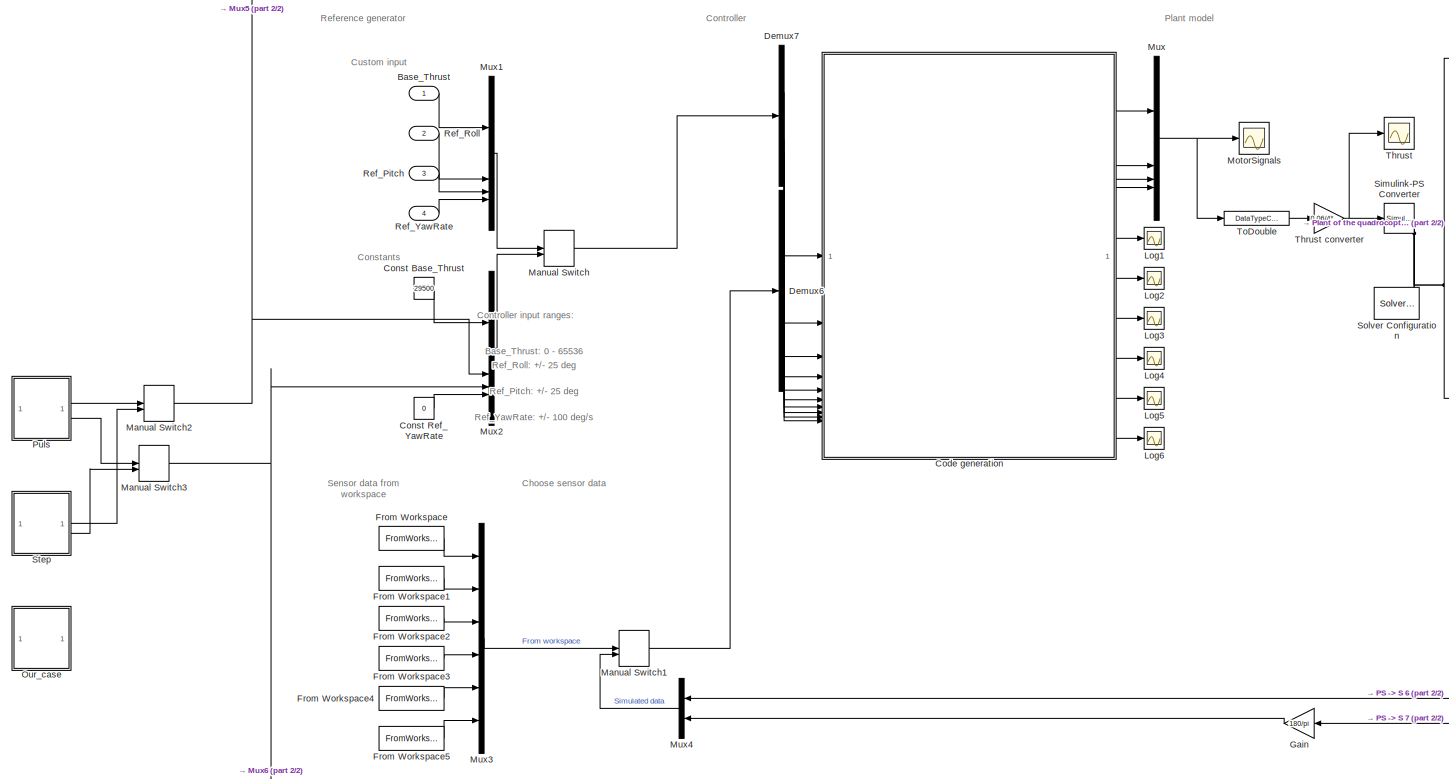
[diagram: root canvas - part 1/2, center side, full height]
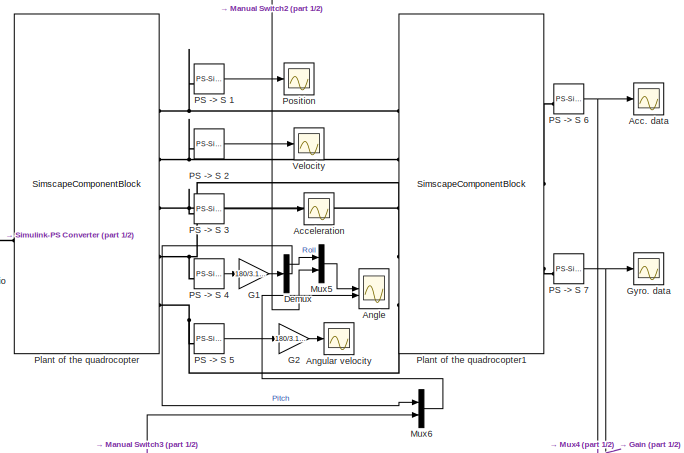
[diagram: root canvas - part 2/2, middle right region]
MODEL slx_b93b4101f14a
KIND model
CONFIG AbsTol = 1e-3
CONFIG EnableMultiTasking = off
CONFIG FixedStep = 1/1000
CONFIG MaxStep = auto
CONFIG MinStep = auto
CONFIG RelTol = 1e-3
CONFIG SampleTimeConstraint = Unconstrained
CONFIG SolverName = FixedStepAuto
CONFIG StartTime = 0.0
CONFIG StopTime = 10
WORKSPACE source: external: MATLAB File  (data not in archive)
BLOCK [Scope] Acc. data
  Floating = off
  NumInputPorts = 1
  ScopeSpecificationString = Simulink.scopes.TimeScopeBlockCfg('CurrentConfiguration', extmgr.ConfigurationSet(extmgr.Configuration('Core','General UI',true),extmgr.Configuration('Core','Source UI',true),extmgr.Configuration('Sources','WiredSimulink',true,'DataLoggingVariableName','ScopeData1','DataLoggingLimitDataPoints',true,'DataLoggingSaveFormat','Array','DataLoggingDecimation','1','DataLoggingDecimateData',true),extmgr.C...<+1552ch>
BLOCK [Scope] Acceleration
  Floating = off
  NumInputPorts = 1
  ScopeSpecificationString = Simulink.scopes.TimeScopeBlockCfg('CurrentConfiguration', extmgr.ConfigurationSet(extmgr.Configuration('Core','General UI',true),extmgr.Configuration('Core','Source UI',true),extmgr.Configuration('Sources','WiredSimulink',true,'DataLoggingVariableName','ScopeData2'),extmgr.Configuration('Visuals','Time Domain',true,'SerializedDisplays',{struct('MinYLimReal','-1.00000','MaxYLimReal','1.00000','YLab...<+1427ch>
BLOCK [Scope] Angle
  Floating = off
  NumInputPorts = 2
  ScopeSpecificationString = Simulink.scopes.TimeScopeBlockCfg('CurrentConfiguration', extmgr.ConfigurationSet(extmgr.Configuration('Core','General UI',true),extmgr.Configuration('Core','Source UI',true),extmgr.Configuration('Sources','WiredSimulink',true,'DataLoggingVariableName','ScopeData3'),extmgr.Configuration('Visuals','Time Domain',true,'SerializedDisplays',{struct('MinYLimReal','-1.62326','MaxYLimReal','11.62327','YLa...<+2221ch>
BLOCK [Scope] Angular velocity
  Floating = off
  NumInputPorts = 1
  ScopeSpecificationString = Simulink.scopes.TimeScopeBlockCfg('CurrentConfiguration', extmgr.ConfigurationSet(extmgr.Configuration('Core','General UI',true),extmgr.Configuration('Core','Source UI',true),extmgr.Configuration('Sources','WiredSimulink',true,'DataLoggingVariableName','ScopeData4','DataLoggingLimitDataPoints',true,'DataLoggingSaveFormat','Array','DataLoggingDecimation','1','DataLoggingDecimateData',true),extmgr.C...<+1539ch>
BLOCK [Inport] Base_Thrust
  OutDataTypeStr = double
BLOCK [ModelReference] Code generation
  ModelNameDialog = crazyflie.slx
  ModelReferenceVersion = 8.0
BLOCK [Constant] Const Base_Thrust
  Value = 29500
BLOCK [Constant] Const Ref_YawRate
  Value = 0
BLOCK [Demux] Demux
  Outputs = 3
BLOCK [Demux] Demux6
  Outputs = 6
BLOCK [Demux] Demux7
BLOCK [FromWorkspace] From Workspace
  OutDataTypeStr = double
  VariableName = Acc_x
BLOCK [FromWorkspace] From Workspace1
  OutDataTypeStr = double
  VariableName = Acc_y
BLOCK [FromWorkspace] From Workspace2
  OutDataTypeStr = double
  VariableName = Acc_z
BLOCK [FromWorkspace] From Workspace3
  OutDataTypeStr = double
  VariableName = Gyro_x
BLOCK [FromWorkspace] From Workspace4
  OutDataTypeStr = double
  VariableName = Gyro_y
BLOCK [FromWorkspace] From Workspace5
  OutDataTypeStr = double
  VariableName = Gyro_z
BLOCK [Gain] G1
  Gain = 180/3.141592
BLOCK [Gain] G2
  Gain = 180/3.141592
BLOCK [Gain] Gain
  Gain = 180/pi
BLOCK [Scope] Gyro. data
  Floating = off
  NumInputPorts = 1
  ScopeSpecificationString = Simulink.scopes.TimeScopeBlockCfg('CurrentConfiguration', extmgr.ConfigurationSet(extmgr.Configuration('Core','General UI',true),extmgr.Configuration('Core','Source UI',true),extmgr.Configuration('Sources','WiredSimulink',true,'DataLoggingVariableName','ScopeData2','DataLoggingLimitDataPoints',true,'DataLoggingSaveFormat','Array','DataLoggingDecimation','1','DataLoggingDecimateData',true),extmgr.C...<+1563ch>
BLOCK [Scope] Log1
  Floating = off
  NumInputPorts = 1
  ScopeSpecificationString = Simulink.scopes.TimeScopeBlockCfg('CurrentConfiguration', extmgr.ConfigurationSet(extmgr.Configuration('Core','General UI',true),extmgr.Configuration('Core','Source UI',true),extmgr.Configuration('Sources','WiredSimulink',true,'DataLoggingVariableName','ScopeData1','DataLoggingSaveFormat','Array','DataLoggingDecimation','1','DataLoggingDecimateData',true),extmgr.Configuration('Visuals','Time Domai...<+1496ch>
BLOCK [Scope] Log2
  Floating = off
  NumInputPorts = 1
  ScopeSpecificationString = Simulink.scopes.TimeScopeBlockCfg('CurrentConfiguration', extmgr.ConfigurationSet(extmgr.Configuration('Core','General UI',true),extmgr.Configuration('Core','Source UI',true),extmgr.Configuration('Sources','WiredSimulink',true,'DataLoggingVariableName','ScopeData2','DataLoggingSaveFormat','Array','DataLoggingDecimation','1','DataLoggingDecimateData',true),extmgr.Configuration('Visuals','Time Domai...<+1502ch>
BLOCK [Scope] Log3
  Floating = off
  NumInputPorts = 1
  ScopeSpecificationString = Simulink.scopes.TimeScopeBlockCfg('CurrentConfiguration', extmgr.ConfigurationSet(extmgr.Configuration('Core','General UI',true),extmgr.Configuration('Core','Source UI',true),extmgr.Configuration('Sources','WiredSimulink',true,'DataLoggingVariableName','ScopeData3','DataLoggingLimitDataPoints',true,'DataLoggingSaveFormat','Array','DataLoggingDecimation','1','DataLoggingDecimateData',true),extmgr.C...<+1498ch>
BLOCK [Scope] Log4
  Floating = off
  NumInputPorts = 1
  ScopeSpecificationString = Simulink.scopes.TimeScopeBlockCfg('CurrentConfiguration', extmgr.ConfigurationSet(extmgr.Configuration('Core','General UI',true),extmgr.Configuration('Core','Source UI',true),extmgr.Configuration('Sources','WiredSimulink',true,'DataLoggingVariableName','ScopeData4','DataLoggingSaveFormat','Array','DataLoggingDecimation','1','DataLoggingDecimateData',true),extmgr.Configuration('Visuals','Time Domai...<+1531ch>
BLOCK [Scope] Log5
  Floating = off
  NumInputPorts = 1
  ScopeSpecificationString = Simulink.scopes.TimeScopeBlockCfg('CurrentConfiguration', extmgr.ConfigurationSet(extmgr.Configuration('Core','General UI',true),extmgr.Configuration('Core','Source UI',true),extmgr.Configuration('Sources','WiredSimulink',true,'DataLoggingVariableName','ScopeData5','DataLoggingSaveFormat','Array','DataLoggingDecimation','1','DataLoggingDecimateData',true),extmgr.Configuration('Visuals','Time Domai...<+1531ch>
BLOCK [Scope] Log6
  Floating = off
  NumInputPorts = 1
  ScopeSpecificationString = Simulink.scopes.TimeScopeBlockCfg('CurrentConfiguration', extmgr.ConfigurationSet(extmgr.Configuration('Core','General UI',true),extmgr.Configuration('Core','Source UI',true),extmgr.Configuration('Sources','WiredSimulink',true,'DataLoggingVariableName','ScopeData6','DataLoggingSaveFormat','Array','DataLoggingDecimation','1','DataLoggingDecimateData',true),extmgr.Configuration('Visuals','Time Domai...<+1503ch>
BLOCK [ManualSwitch] Manual Switch
  CurrentSetting = 0
BLOCK [ManualSwitch] Manual Switch1
  CurrentSetting = 0
BLOCK [ManualSwitch] Manual Switch2
  CurrentSetting = 0
BLOCK [ManualSwitch] Manual Switch3
  CurrentSetting = 0
BLOCK [Scope] MotorSignals
  Floating = off
  NumInputPorts = 1
  ScopeSpecificationString = Simulink.scopes.TimeScopeBlockCfg('CurrentConfiguration', extmgr.ConfigurationSet(extmgr.Configuration('Core','General UI',true),extmgr.Configuration('Core','Source UI',true),extmgr.Configuration('Sources','WiredSimulink',true,'DataLoggingVariableName','ScopeData2'),extmgr.Configuration('Visuals','Time Domain',true,'SerializedDisplays',{struct('MinYLimReal','-1.00000','MaxYLimReal','1.00000','YLab...<+1463ch>
BLOCK [Mux] Mux
  DisplayOption = bar
BLOCK [Mux] Mux1
  DisplayOption = bar
BLOCK [Mux] Mux2
  DisplayOption = bar
BLOCK [Mux] Mux3
  DisplayOption = bar
  Inputs = 6
BLOCK [Mux] Mux4
  DisplayOption = bar
  Inputs = 2
BLOCK [Mux] Mux5
  DisplayOption = bar
  Inputs = 2
BLOCK [Mux] Mux6
  DisplayOption = bar
  Inputs = 2
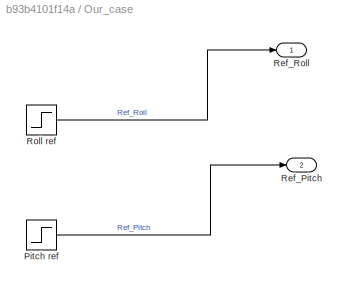
BLOCK [SubSystem] Our_case
  Commented = on
BLOCK [Step] Our_case/Pitch ref
  After = 5
  SampleTime = 0
  Time = 6
BLOCK [Outport] Our_case/Ref_Pitch
  Port = 2
BLOCK [Outport] Our_case/Ref_Roll
BLOCK [Step] Our_case/Roll ref
  After = 10
  SampleTime = 0
  Time = 6
BLOCK [Reference] PS -> S 1  REF=nesl_utility/PS-Simulink
Converter
  SourceBlock = nesl_utility/PS-Simulink\nConverter
  SourceType = PS-Simulink\nConverter
BLOCK [Reference] PS -> S 2  REF=nesl_utility/PS-Simulink
Converter
  SourceBlock = nesl_utility/PS-Simulink\nConverter
  SourceType = PS-Simulink\nConverter
BLOCK [Reference] PS -> S 3  REF=nesl_utility/PS-Simulink
Converter
  SourceBlock = nesl_utility/PS-Simulink\nConverter
  SourceType = PS-Simulink\nConverter
BLOCK [Reference] PS -> S 4  REF=nesl_utility/PS-Simulink
Converter
  SourceBlock = nesl_utility/PS-Simulink\nConverter
  SourceType = PS-Simulink\nConverter
BLOCK [Reference] PS -> S 5  REF=nesl_utility/PS-Simulink
Converter
  SourceBlock = nesl_utility/PS-Simulink\nConverter
  SourceType = PS-Simulink\nConverter
BLOCK [Reference] PS -> S 6  REF=nesl_utility/PS-Simulink
Converter
  SourceBlock = nesl_utility/PS-Simulink\nConverter
  SourceType = PS-Simulink\nConverter
BLOCK [Reference] PS -> S 7  REF=nesl_utility/PS-Simulink
Converter
  SourceBlock = nesl_utility/PS-Simulink\nConverter
  SourceType = PS-Simulink\nConverter
BLOCK [SimscapeComponentBlock] Plant of the quadrocopter
  ClassName = plant
  ComponentPath = plant
  ComponentVariantNames = plant
  ComponentVariants = plant
  CopyFcn = simscape.engine.sli.internal.componentblockcallback(gcbh,'COPY')
  F = 0.25
  F_conf = compiletime
  F_unit = N*s/m
  InternalSimscapePortConfiguration = {"Bottom":[],"Left":[{"id":"ctrl","label":"Thrust","type":"input"}],"Right":[{"id":"pos","label":"Position","type":"output"},{"id":"v","label":"Velocity","type":"output"},{"id":"a","label":"Acceleration","type":"output"},{"id":"angle","label":"Angle","type":"output"},{"id":"w","label":"Angular velocity","type":"output"}],"Top":[]}
  MaskType = Plant of quadrocopter
  PreCopyFcn = simscape.engine.sli.internal.componentblockcallback(gcbh,'PRECOPY')
  PreDeleteFcn = simscape.engine.sli.internal.componentblockcallback(gcbh,'PREDELETE')
  SchemaVersion = 1
  SourceFile = plant
  c = 0
  c_conf = compiletime
  c_unit = m/s^2
  d = d
  d_conf = compiletime
  d_unit = m
  drag = drag
  drag_conf = compiletime
  drag_unit = N*m/(rad/s)^2
  g = g
  g_conf = compiletime
  g_unit = m/s^2
  lift = lift
  lift_conf = compiletime
  lift_unit = N*s^2/rad^2
  m = m
  m_conf = compiletime
  m_unit = kg
BLOCK [SimscapeComponentBlock] Plant of the quadrocopter1
  ClassName = sensors
  ComponentPath = sensors
  ComponentVariantNames = sensors
  ComponentVariants = sensors
  CopyFcn = simscape.engine.sli.internal.componentblockcallback(gcbh,'COPY')
  InternalSimscapePortConfiguration = {"Bottom":[],"Left":[{"id":"pos","label":"Position","type":"input"},{"id":"v","label":"Velocity","type":"input"},{"id":"a","label":"Acceleration","type":"input"},{"id":"angle","label":"Angle","type":"input"},{"id":"w","label":"Angular velocity","type":"input"}],"Right":[{"id":"acc","label":"Accelerometer","type":"output"},{"id":"gyro","label":"Gyroscope","type":"output"}],"Top":[]}
  MaskType = Plant of quadrocopter
  PreCopyFcn = simscape.engine.sli.internal.componentblockcallback(gcbh,'PRECOPY')
  PreDeleteFcn = simscape.engine.sli.internal.componentblockcallback(gcbh,'PREDELETE')
  SchemaVersion = 1
  SourceFile = sensors
  b = 1.9796e-9
  b_conf = compiletime
  b_unit = 1
  d = 0.046
  d_conf = compiletime
  d_unit = m
  g = 9.81
  g_conf = compiletime
  g_unit = m/s^2
  k = 2.5383e-11
  k_conf = compiletime
  k_unit = m
  m = 0.027
  m_conf = compiletime
  m_unit = kg
BLOCK [Scope] Position
  Floating = off
  NumInputPorts = 1
  ScopeSpecificationString = Simulink.scopes.TimeScopeBlockCfg('CurrentConfiguration', extmgr.ConfigurationSet(extmgr.Configuration('Core','General UI',true),extmgr.Configuration('Core','Source UI',true),extmgr.Configuration('Sources','WiredSimulink',true),extmgr.Configuration('Visuals','Time Domain',true,'SerializedDisplays',{struct('MinYLimReal','-1.00000','MaxYLimReal','1.00000','YLabelReal','','MinYLimMag','0.00000','MaxY...<+1395ch>
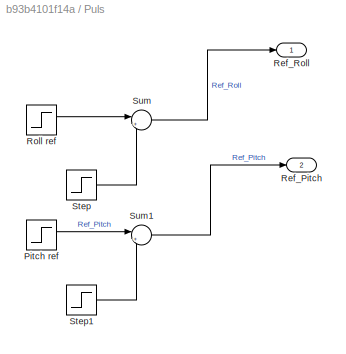
BLOCK [SubSystem] Puls
BLOCK [Step] Puls/Pitch ref
  After = 6
  SampleTime = 0
  Time = 6
BLOCK [Outport] Puls/Ref_Pitch
  Port = 2
BLOCK [Outport] Puls/Ref_Roll
BLOCK [Step] Puls/Roll ref
  After = 6
  SampleTime = 0
  Time = 4
BLOCK [Step] Puls/Step
  After = 6
  SampleTime = 0
  Time = 4.1
BLOCK [Step] Puls/Step1
  After = 6
  SampleTime = 0
  Time = 6.1
BLOCK [Sum] Puls/Sum
  Inputs = |+-
BLOCK [Sum] Puls/Sum1
  Inputs = |+-
BLOCK [Inport] Ref_Pitch
  OutDataTypeStr = double
  Port = 3
BLOCK [Inport] Ref_Roll
  OutDataTypeStr = double
  Port = 2
BLOCK [Inport] Ref_YawRate
  OutDataTypeStr = double
  Port = 4
BLOCK [Reference] Simulink-PS Converter  REF=nesl_utility/Simulink-PS
Converter
  SourceBlock = nesl_utility/Simulink-PS\nConverter
  SourceType = Simulink-PS\nConverter
BLOCK [Reference] Solver Configuration  REF=nesl_utility/Solver
Configuration
  SourceBlock = nesl_utility/Solver\nConfiguration
  SourceType = Solver\nConfiguration
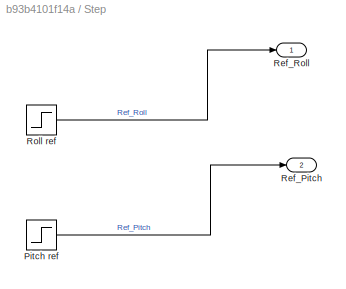
BLOCK [SubSystem] Step
BLOCK [Step] Step/Pitch ref
  After = 10
  SampleTime = 0
  Time = 4
BLOCK [Outport] Step/Ref_Pitch
  Port = 2
BLOCK [Outport] Step/Ref_Roll
BLOCK [Step] Step/Roll ref
  After = 0
  Before = 10
  SampleTime = 0
  Time = 6
BLOCK [Scope] Thrust
  Floating = off
  NumInputPorts = 1
  ScopeSpecificationString = Simulink.scopes.TimeScopeBlockCfg('CurrentConfiguration', extmgr.ConfigurationSet(extmgr.Configuration('Core','General UI',true),extmgr.Configuration('Core','Source UI',true),extmgr.Configuration('Sources','WiredSimulink',true,'DataLoggingVariableName','ScopeData1'),extmgr.Configuration('Visuals','Time Domain',true,'SerializedDisplays',{struct('MinYLimReal','-0.01839','MaxYLimReal','0.16554','YLab...<+1468ch>
BLOCK [Gain] Thrust converter
  Gain = 0.06/4*g/65536
BLOCK [DataTypeConversion] ToDouble
  OutDataTypeStr = double
  RndMeth = Round
BLOCK [Scope] Velocity
  Floating = off
  NumInputPorts = 1
  ScopeSpecificationString = Simulink.scopes.TimeScopeBlockCfg('CurrentConfiguration', extmgr.ConfigurationSet(extmgr.Configuration('Core','General UI',true),extmgr.Configuration('Core','Source UI',true),extmgr.Configuration('Sources','WiredSimulink',true,'DataLoggingVariableName','ScopeData1','DataLoggingLimitDataPoints',true,'DataLoggingSaveFormat','Array','DataLoggingDecimation','1','DataLoggingDecimateData',true),extmgr.C...<+1552ch>
ANNOTATION (root): Base_Thrust: 0 - 65536
ANNOTATION (root): Choose sensor data
ANNOTATION (root): Constants
ANNOTATION (root): Controller
ANNOTATION (root): Controller input ranges:
ANNOTATION (root): Custom input
ANNOTATION (root): Plant model
ANNOTATION (root): Ref_Pitch: +/- 25 deg
ANNOTATION (root): Ref_Roll: +/- 25 deg
ANNOTATION (root): Ref_YawRate: +/- 100 deg/s
ANNOTATION (root): Reference generator
ANNOTATION (root): Sensor data from workspace
LINE Base_Thrust:1 -> Mux1:1
LINE Code generation:1 -> Mux:1
LINE Code generation:10 -> Log6:1
LINE Code generation:2 -> Mux:2
LINE Code generation:3 -> Mux:3
LINE Code generation:4 -> Mux:4
LINE Code generation:5 -> Log1:1
LINE Code generation:6 -> Log2:1
LINE Code generation:7 -> Log3:1
LINE Code generation:8 -> Log4:1
LINE Code generation:9 -> Log5:1
LINE Const Base_Thrust:1 -> Mux2:1
LINE Const Ref_YawRate:1 -> Mux2:4
LINE Demux6:1 -> Code generation:5
LINE Demux6:2 -> Code generation:6
LINE Demux6:3 -> Code generation:7
LINE Demux6:4 -> Code generation:8
LINE Demux6:5 -> Code generation:9
LINE Demux6:6 -> Code generation:10
LINE Demux7:1 -> Code generation:1
LINE Demux7:2 -> Code generation:2
LINE Demux7:3 -> Code generation:3
LINE Demux7:4 -> Code generation:4
LINE Demux:1 -> Mux5:1
LINE Demux:2 -> Mux6:1
LINE From Workspace1:1 -> Mux3:2
LINE From Workspace2:1 -> Mux3:3
LINE From Workspace3:1 -> Mux3:4
LINE From Workspace4:1 -> Mux3:5
LINE From Workspace5:1 -> Mux3:6
LINE From Workspace:1 -> Mux3:1
LINE G1:1 -> Demux:1
LINE G2:1 -> Angular velocity:1
LINE Gain:1 -> Mux4:2
LINE Manual Switch1:1 -> Demux6:1
NET Manual Switch2:1 -> Mux2:2, Mux5:2
NET Manual Switch3:1 -> Mux2:3, Mux6:2
LINE Manual Switch:1 -> Demux7:1
LINE Mux1:1 -> Manual Switch:1
LINE Mux2:1 -> Manual Switch:2
LINE Mux3:1 -> Manual Switch1:1
LINE Mux4:1 -> Manual Switch1:2
LINE Mux5:1 -> Angle:1
LINE Mux6:1 -> Angle:2
NET Mux:1 -> MotorSignals:1, ToDouble:1
LINE Our_case/Pitch ref:1 -> Our_case/Ref_Pitch:1
LINE Our_case/Roll ref:1 -> Our_case/Ref_Roll:1
LINE PS -> S 1:1 -> Position:1
LINE PS -> S 2:1 -> Velocity:1
LINE PS -> S 3:1 -> Acceleration:1
LINE PS -> S 4:1 -> G1:1
LINE PS -> S 5:1 -> G2:1
NET PS -> S 6:1 -> Acc. data:1, Mux4:1
NET PS -> S 7:1 -> Gain:1, Gyro. data:1
LINE Puls/Pitch ref:1 -> Puls/Sum1:1
LINE Puls/Roll ref:1 -> Puls/Sum:1
LINE Puls/Step1:1 -> Puls/Sum1:2
LINE Puls/Step:1 -> Puls/Sum:2
LINE Puls/Sum1:1 -> Puls/Ref_Pitch:1
LINE Puls/Sum:1 -> Puls/Ref_Roll:1
LINE Puls:1 -> Manual Switch2:1
LINE Puls:2 -> Manual Switch3:1
LINE Ref_Pitch:1 -> Mux1:3
LINE Ref_Roll:1 -> Mux1:2
LINE Ref_YawRate:1 -> Mux1:4
LINE Step/Pitch ref:1 -> Step/Ref_Pitch:1
LINE Step/Roll ref:1 -> Step/Ref_Roll:1
LINE Step:1 -> Manual Switch2:2
LINE Step:2 -> Manual Switch3:2
NET Thrust converter:1 -> Simulink-PS Converter:1, Thrust:1
LINE ToDouble:1 -> Thrust converter:1
PNET net1: PS -> S 1:LConn1 -- Plant of the quadrocopter1:LConn1 -- Plant of the quadrocopter:RConn1
PNET net2: PS -> S 2:LConn1 -- Plant of the quadrocopter1:LConn2 -- Plant of the quadrocopter:RConn2
PNET net3: PS -> S 3:LConn1 -- Plant of the quadrocopter1:LConn3 -- Plant of the quadrocopter:RConn3
PNET net4: PS -> S 4:LConn1 -- Plant of the quadrocopter1:LConn4 -- Plant of the quadrocopter:RConn4
PNET net5: PS -> S 5:LConn1 -- Plant of the quadrocopter1:LConn5 -- Plant of the quadrocopter:RConn5
PLINE PS -> S 6:LConn1 -- Plant of the quadrocopter1:RConn1
PLINE PS -> S 7:LConn1 -- Plant of the quadrocopter1:RConn2
PNET net6: Plant of the quadrocopter:LConn1 -- Simulink-PS Converter:RConn1 -- Solver Configuration:RConn1
note: NET lines group one-source signal fan-out (src -> all destinations, sorted); 1:1 wires keep LINE; PNET lines group multi-terminal physical nets as a canonical sorted terminal list (undirected conserving connections); 2-terminal nets keep the pairwise PLINE form
